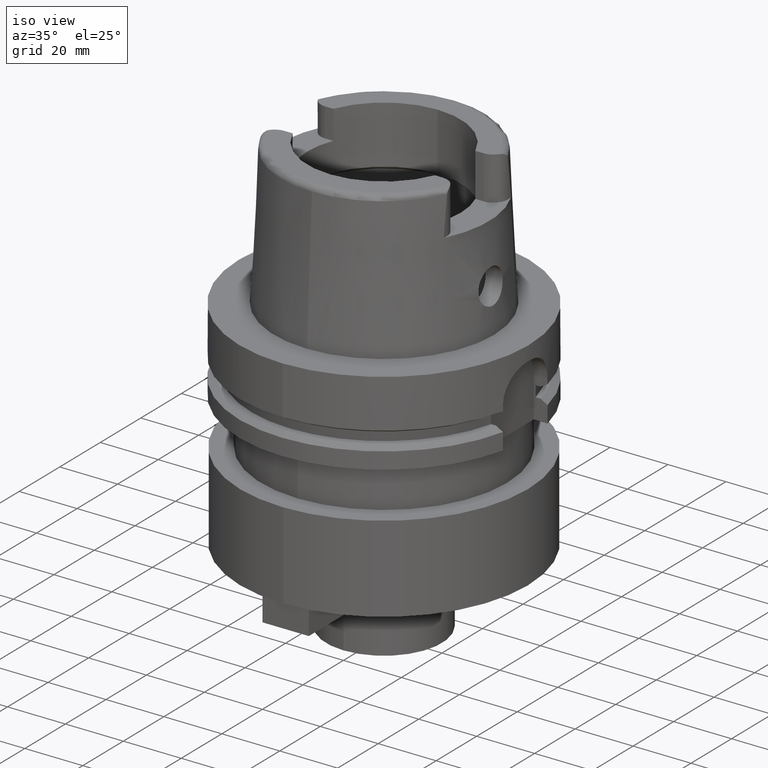
[diagram: clean part render]
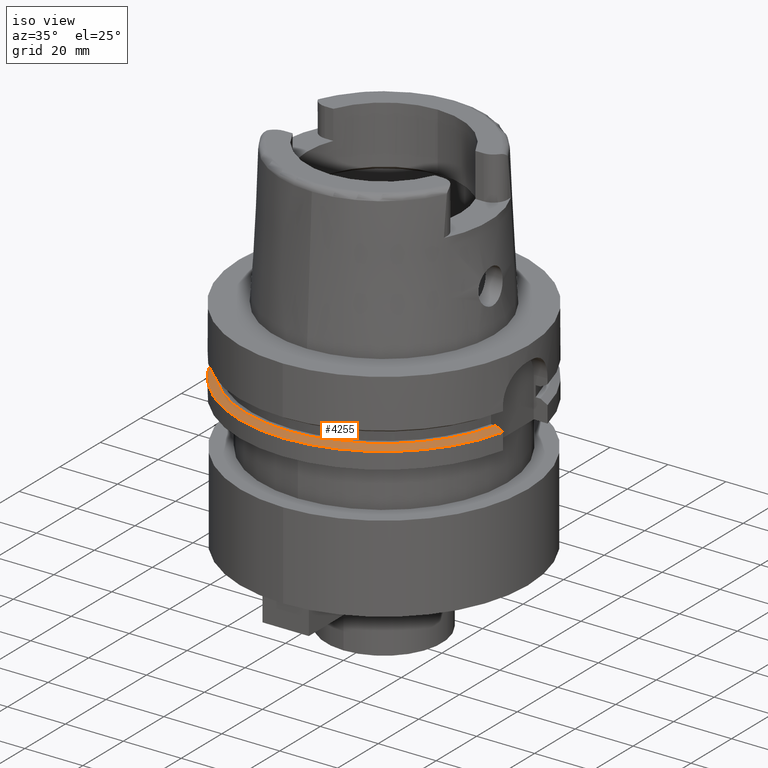
[diagram: same view with one face highlighted and labeled with its STEP entity id]
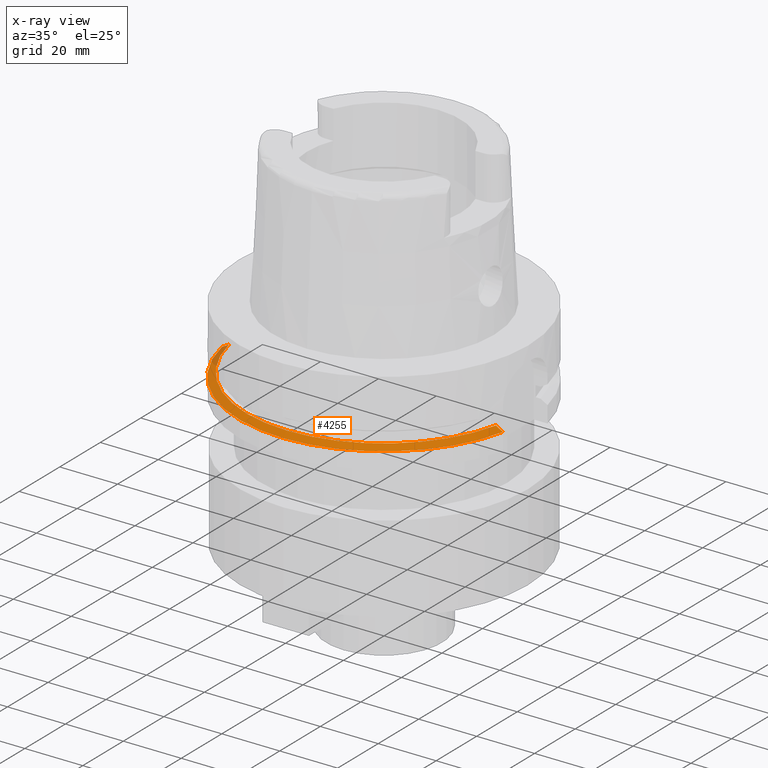
[diagram: x-ray of the same camera — body ghosted, the highlighted face saturated]
A machine part, iso view. The second image highlights one B-rep face of the part: STEP entity #4255.
The next image is the same camera in x-ray: the body ghosted, the highlighted face saturated — about 4% of this face is hidden behind the body in this view.
In plain terms, the highlighted conical surface has half-angle 60 deg.
Its self-contained STEP definition (entity closure, byte-faithful):
#2031=CARTESIAN_POINT('',(0.E0,0.E0,-2.1875E1));
#2032=DIRECTION('',(0.E0,0.E0,-1.E0));
#2033=DIRECTION('',(9.729578356532E-1,-2.309827916554E-1,0.E0));
#2034=AXIS2_PLACEMENT_3D('',#2031,#2032,#2033);
#2039=CARTESIAN_POINT('',(0.E0,0.E0,-2.1875E1));
#2040=DIRECTION('',(0.E0,0.E0,-1.E0));
#2041=DIRECTION('',(0.E0,-1.E0,0.E0));
#2042=AXIS2_PLACEMENT_3D('',#2039,#2040,#2041);
#2047=CARTESIAN_POINT('',(-4.898979485566E1,-1.E1,-2.324759526419E1));
#2048=CARTESIAN_POINT('',(-4.872002593966E1,-1.E1,-2.309499092031E1));
#2049=CARTESIAN_POINT('',(-4.818041161677E1,-1.E1,-2.278984413389E1));
#2050=CARTESIAN_POINT('',(-4.737076227628E1,-1.E1,-2.233230648793E1));
#2051=CARTESIAN_POINT('',(-4.683084020607E1,-1.E1,-2.202741066863E1));
#2052=CARTESIAN_POINT('',(-4.656083740330E1,-1.E1,-2.1875E1));
#2057=CARTESIAN_POINT('',(4.633477721644E1,-1.1E1,-2.1875E1));
#2058=CARTESIAN_POINT('',(4.660605711265E1,-1.1E1,-2.202738808211E1));
#2059=CARTESIAN_POINT('',(4.714851446811E1,-1.1E1,-2.233225649733E1));
#2060=CARTESIAN_POINT('',(4.796191616323E1,-1.1E1,-2.278979543230E1));
#2061=CARTESIAN_POINT('',(4.850399904748E1,-1.1E1,-2.309496975038E1));
#2062=CARTESIAN_POINT('',(4.877499359303E1,-1.1E1,-2.324759526419E1));
#2067=CARTESIAN_POINT('',(0.E0,0.E0,-2.324759526419E1));
#2068=DIRECTION('',(0.E0,0.E0,-1.E0));
#2069=DIRECTION('',(9.754998718606E-1,-2.2E-1,0.E0));
#2070=AXIS2_PLACEMENT_3D('',#2067,#2068,#2069);
#2075=CARTESIAN_POINT('',(0.E0,0.E0,-2.324759526419E1));
#2076=DIRECTION('',(0.E0,0.E0,-1.E0));
#2077=DIRECTION('',(0.E0,-1.E0,0.E0));
#2078=AXIS2_PLACEMENT_3D('',#2075,#2076,#2077);
#2707=CARTESIAN_POINT('',(-4.656083740330E1,-1.E1,-2.1875E1));
#2708=VERTEX_POINT('',#2707);
#2709=VERTEX_POINT('',#2047);
#2721=CARTESIAN_POINT('',(4.877499359303E1,-1.1E1,-2.324759526419E1));
#2722=CARTESIAN_POINT('',(0.E0,-5.E1,-2.324759526419E1));
#2723=VERTEX_POINT('',#2721);
#2724=VERTEX_POINT('',#2722);
#2729=CARTESIAN_POINT('',(3.839522673045E-14,-4.762259526419E1,-2.1875E1));
#2730=VERTEX_POINT('',#2729);
#2731=CARTESIAN_POINT('',(4.633477721644E1,-1.1E1,-2.1875E1));
#2732=VERTEX_POINT('',#2731);
#4242=CARTESIAN_POINT('',(0.E0,0.E0,-2.256129763210E1));
#4243=DIRECTION('',(0.E0,0.E0,-1.E0));
#4244=DIRECTION('',(0.E0,-1.E0,0.E0));
#4245=AXIS2_PLACEMENT_3D('',#4242,#4243,#4244);
#4246=CONICAL_SURFACE('',#4245,4.881129763209E1,6.E1);
#4247=ORIENTED_EDGE('',*,*,#3912,.T.);
#4248=ORIENTED_EDGE('',*,*,#4237,.F.);
#4249=ORIENTED_EDGE('',*,*,#4235,.F.);
#4250=ORIENTED_EDGE('',*,*,#3857,.T.);
#4251=ORIENTED_EDGE('',*,*,#3884,.T.);
#4252=ORIENTED_EDGE('',*,*,#3882,.T.);
#4253=EDGE_LOOP('',(#4247,#4248,#4249,#4250,#4251,#4252));
#4254=FACE_OUTER_BOUND('',#4253,.F.);
#2035=CIRCLE('',#2034,4.762259526419E1);
#2043=CIRCLE('',#2042,4.762259526419E1);
#2053=B_SPLINE_CURVE_WITH_KNOTS('',3,(#2047,#2048,#2049,#2050,#2051,#2052),
.UNSPECIFIED.,.F.,.F.,(4,1,1,4),(0.E0,3.333333333333E-1,6.666666666667E-1,1.E0),
.UNSPECIFIED.);
#2063=B_SPLINE_CURVE_WITH_KNOTS('',3,(#2057,#2058,#2059,#2060,#2061,#2062),
.UNSPECIFIED.,.F.,.F.,(4,1,1,4),(0.E0,3.333333333333E-1,6.666666666667E-1,1.E0),
.UNSPECIFIED.);
#2071=CIRCLE('',#2070,5.E1);
#2079=CIRCLE('',#2078,5.E1);
#3857=EDGE_CURVE('',#2732,#2723,#2063,.T.);
#3882=EDGE_CURVE('',#2724,#2709,#2079,.T.);
#3884=EDGE_CURVE('',#2723,#2724,#2071,.T.);
#3912=EDGE_CURVE('',#2709,#2708,#2053,.T.);
#4235=EDGE_CURVE('',#2732,#2730,#2035,.T.);
#4237=EDGE_CURVE('',#2730,#2708,#2043,.T.);
#4255=ADVANCED_FACE('',(#4254),#4246,.T.);